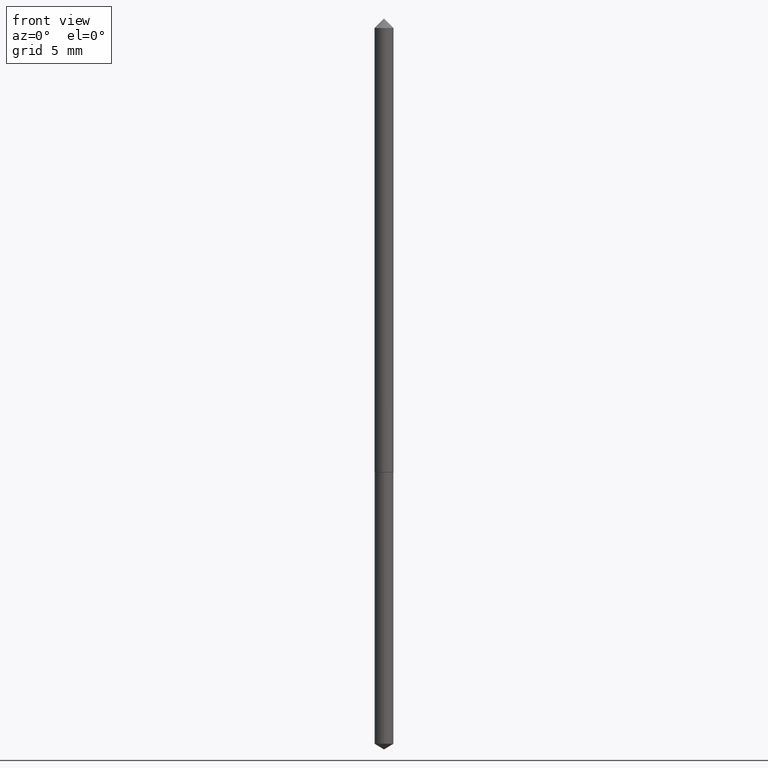
[diagram: clean part render]
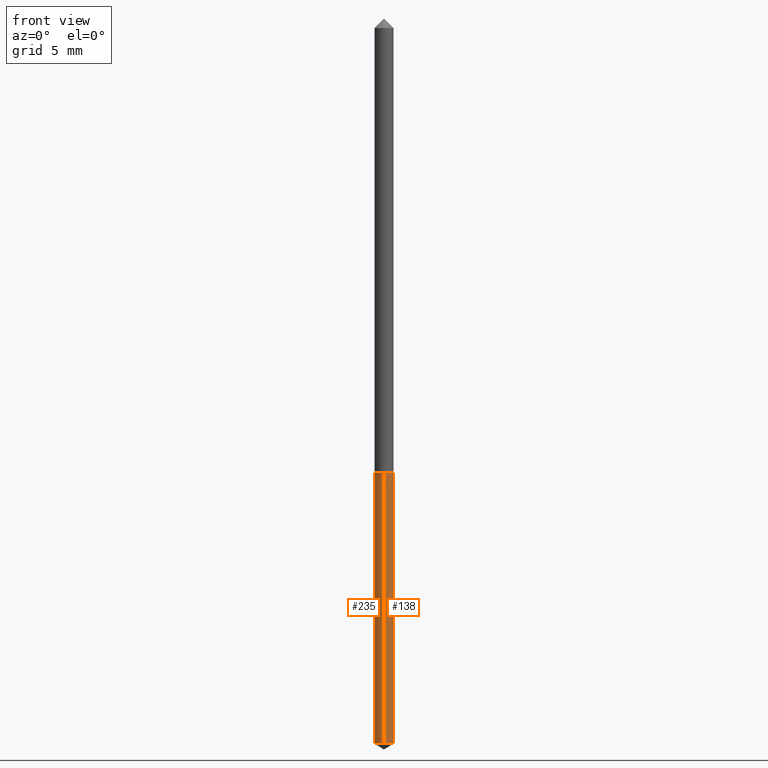
[diagram: same view with one multi-face feature highlighted, each face labeled with its STEP entity id]
A machine part, front view. The highlighted faces form ONE feature: a constant-radius fillet chain: 2 tangent blend faces with common blend radius 0.4064 mm. The faces share edges in the B-rep.
Their STEP definitions:
[1] entity #138 (Cylinder):
#7 = CARTESIAN_POINT ( 'NONE',  ( 1.136868377216351373E-16, 0.01599999999999726988, -0.7820000000000000284 ) ) ;
#10 = EDGE_CURVE ( 'NONE', #23, #249, #36, .T. ) ;
#16 = FACE_OUTER_BOUND ( 'NONE', #196, .T. ) ;
#22 = DIRECTION ( 'NONE',  ( -6.982962677686266711E-15, -1.000000000000000000, 0.000000000000000000 ) ) ;
#23 = VERTEX_POINT ( 'NONE', #164 ) ;
#36 = CIRCLE ( 'NONE', #298, 0.01600000000000000033 ) ;
#42 = VERTEX_POINT ( 'NONE', #331 ) ;
#74 = ORIENTED_EDGE ( 'NONE', *, *, #182, .T. ) ;
#83 = DIRECTION ( 'NONE',  ( -2.445498131459376730E-29, 3.491439343381342925E-15, 1.000000000000000000 ) ) ;
#92 = LINE ( 'NONE', #7, #343 ) ;
#123 = VERTEX_POINT ( 'NONE', #222 ) ;
#138 = ADVANCED_FACE ( 'NONE', ( #16 ), #219, .T. ) ;
#141 = AXIS2_PLACEMENT_3D ( 'NONE', #174, #257, #237 ) ;
#148 = CARTESIAN_POINT ( 'NONE',  ( 1.136868377216464526E-16, 0.01599999999999726988, -0.7820000000000000284 ) ) ;
#164 = CARTESIAN_POINT ( 'NONE',  ( -1.117274028429611414E-16, -0.01600000000000273079, -0.7820000000000000284 ) ) ;
#169 = EDGE_CURVE ( 'NONE', #42, #249, #92, .T. ) ;
#172 = DIRECTION ( 'NONE',  ( -2.445498131459376730E-29, 3.491439343381342925E-15, 1.000000000000000000 ) ) ;
#174 = CARTESIAN_POINT ( 'NONE',  ( 3.033339275622173762E-29, -4.330766125195227959E-15, -1.240386230095559039 ) ) ;
#182 = EDGE_CURVE ( 'NONE', #123, #42, #292, .T. ) ;
#188 = AXIS2_PLACEMENT_3D ( 'NONE', #333, #83, #311 ) ;
#196 = EDGE_LOOP ( 'NONE', ( #74, #350, #251, #225 ) ) ;
#198 = CARTESIAN_POINT ( 'NONE',  ( 1.912356606436776888E-29, -2.730338406975340050E-15, -0.7820000000000000284 ) ) ;
#219 = CYLINDRICAL_SURFACE ( 'NONE', #188, 0.01600000000000000033 ) ;
#222 = CARTESIAN_POINT ( 'NONE',  ( -1.117274028429499248E-16, -0.01600000000000433020, -1.240386230095559039 ) ) ;
#225 = ORIENTED_EDGE ( 'NONE', *, *, #334, .F. ) ;
#237 = DIRECTION ( 'NONE',  ( -6.982962677686266711E-15, -1.000000000000000000, 0.000000000000000000 ) ) ;
#241 = LINE ( 'NONE', #352, #329 ) ;
#243 = DIRECTION ( 'NONE',  ( -2.445498131459376450E-29, 3.491439343381342925E-15, 1.000000000000000000 ) ) ;
#249 = VERTEX_POINT ( 'NONE', #148 ) ;
#251 = ORIENTED_EDGE ( 'NONE', *, *, #10, .F. ) ;
#257 = DIRECTION ( 'NONE',  ( -2.445498131459376730E-29, 3.491439343381342925E-15, 1.000000000000000000 ) ) ;
#292 = CIRCLE ( 'NONE', #141, 0.01600000000000000033 ) ;
#298 = AXIS2_PLACEMENT_3D ( 'NONE', #198, #172, #22 ) ;
#311 = DIRECTION ( 'NONE',  ( -6.982962677686266711E-15, -1.000000000000000000, 0.000000000000000000 ) ) ;
#329 = VECTOR ( 'NONE', #243, 39.37007874015748143 ) ;
#331 = CARTESIAN_POINT ( 'NONE',  ( 1.136868377216463539E-16, 0.01599999999999566699, -1.240386230095559039 ) ) ;
#333 = CARTESIAN_POINT ( 'NONE',  ( 1.912356606436776888E-29, -2.730338406975340050E-15, -0.7820000000000000284 ) ) ;
#334 = EDGE_CURVE ( 'NONE', #123, #23, #241, .T. ) ;
#343 = VECTOR ( 'NONE', #347, 39.37007874015748143 ) ;
#347 = DIRECTION ( 'NONE',  ( -2.445498131459376450E-29, 3.491439343381342925E-15, 1.000000000000000000 ) ) ;
#350 = ORIENTED_EDGE ( 'NONE', *, *, #169, .T. ) ;
#352 = CARTESIAN_POINT ( 'NONE',  ( -1.117274028429611414E-16, -0.01600000000000273079, -0.7820000000000000284 ) ) ;
[2] entity #235 (Cylinder):
#5 = CYLINDRICAL_SURFACE ( 'NONE', #163, 0.01600000000000000033 ) ;
#7 = CARTESIAN_POINT ( 'NONE',  ( 1.136868377216351373E-16, 0.01599999999999726988, -0.7820000000000000284 ) ) ;
#9 = ORIENTED_EDGE ( 'NONE', *, *, #75, .F. ) ;
#13 = AXIS2_PLACEMENT_3D ( 'NONE', #122, #291, #183 ) ;
#23 = VERTEX_POINT ( 'NONE', #164 ) ;
#28 = EDGE_LOOP ( 'NONE', ( #184, #119, #279, #9 ) ) ;
#42 = VERTEX_POINT ( 'NONE', #331 ) ;
#63 = CARTESIAN_POINT ( 'NONE',  ( 1.912356606436776888E-29, -2.730338406975340050E-15, -0.7820000000000000284 ) ) ;
#69 = CIRCLE ( 'NONE', #187, 0.01600000000000000033 ) ;
#75 = EDGE_CURVE ( 'NONE', #249, #23, #69, .T. ) ;
#78 = DIRECTION ( 'NONE',  ( -6.982962677686266711E-15, -1.000000000000000000, 0.000000000000000000 ) ) ;
#92 = LINE ( 'NONE', #7, #343 ) ;
#94 = DIRECTION ( 'NONE',  ( -2.445498131459376730E-29, 3.491439343381342925E-15, 1.000000000000000000 ) ) ;
#97 = FACE_OUTER_BOUND ( 'NONE', #28, .T. ) ;
#119 = ORIENTED_EDGE ( 'NONE', *, *, #220, .T. ) ;
#122 = CARTESIAN_POINT ( 'NONE',  ( 3.033339275622173762E-29, -4.330766125195227959E-15, -1.240386230095559039 ) ) ;
#123 = VERTEX_POINT ( 'NONE', #222 ) ;
#148 = CARTESIAN_POINT ( 'NONE',  ( 1.136868377216464526E-16, 0.01599999999999726988, -0.7820000000000000284 ) ) ;
#163 = AXIS2_PLACEMENT_3D ( 'NONE', #63, #94, #346 ) ;
#164 = CARTESIAN_POINT ( 'NONE',  ( -1.117274028429611414E-16, -0.01600000000000273079, -0.7820000000000000284 ) ) ;
#169 = EDGE_CURVE ( 'NONE', #42, #249, #92, .T. ) ;
#183 = DIRECTION ( 'NONE',  ( -6.982962677686266711E-15, -1.000000000000000000, 0.000000000000000000 ) ) ;
#184 = ORIENTED_EDGE ( 'NONE', *, *, #169, .F. ) ;
#187 = AXIS2_PLACEMENT_3D ( 'NONE', #357, #276, #78 ) ;
#220 = EDGE_CURVE ( 'NONE', #42, #123, #239, .T. ) ;
#222 = CARTESIAN_POINT ( 'NONE',  ( -1.117274028429499248E-16, -0.01600000000000433020, -1.240386230095559039 ) ) ;
#235 = ADVANCED_FACE ( 'NONE', ( #97 ), #5, .T. ) ;
#239 = CIRCLE ( 'NONE', #13, 0.01600000000000000033 ) ;
#241 = LINE ( 'NONE', #352, #329 ) ;
#243 = DIRECTION ( 'NONE',  ( -2.445498131459376450E-29, 3.491439343381342925E-15, 1.000000000000000000 ) ) ;
#249 = VERTEX_POINT ( 'NONE', #148 ) ;
#276 = DIRECTION ( 'NONE',  ( -2.445498131459376730E-29, 3.491439343381342925E-15, 1.000000000000000000 ) ) ;
#279 = ORIENTED_EDGE ( 'NONE', *, *, #334, .T. ) ;
#291 = DIRECTION ( 'NONE',  ( -2.445498131459376730E-29, 3.491439343381342925E-15, 1.000000000000000000 ) ) ;
#329 = VECTOR ( 'NONE', #243, 39.37007874015748143 ) ;
#331 = CARTESIAN_POINT ( 'NONE',  ( 1.136868377216463539E-16, 0.01599999999999566699, -1.240386230095559039 ) ) ;
#334 = EDGE_CURVE ( 'NONE', #123, #23, #241, .T. ) ;
#343 = VECTOR ( 'NONE', #347, 39.37007874015748143 ) ;
#346 = DIRECTION ( 'NONE',  ( -6.982962677686266711E-15, -1.000000000000000000, 0.000000000000000000 ) ) ;
#347 = DIRECTION ( 'NONE',  ( -2.445498131459376450E-29, 3.491439343381342925E-15, 1.000000000000000000 ) ) ;
#352 = CARTESIAN_POINT ( 'NONE',  ( -1.117274028429611414E-16, -0.01600000000000273079, -0.7820000000000000284 ) ) ;
#357 = CARTESIAN_POINT ( 'NONE',  ( 1.912356606436776888E-29, -2.730338406975340050E-15, -0.7820000000000000284 ) ) ;